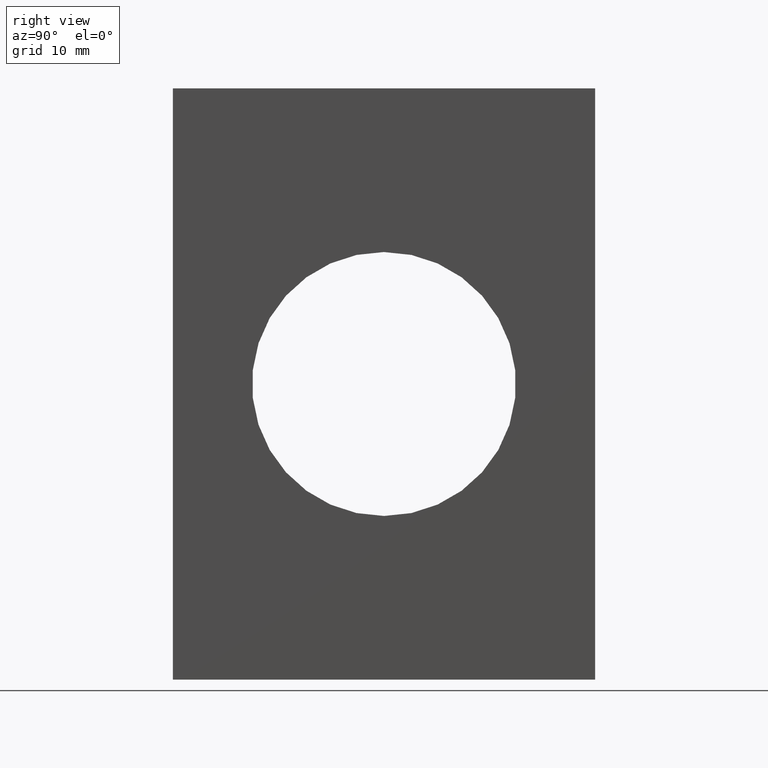
[diagram: clean part render]
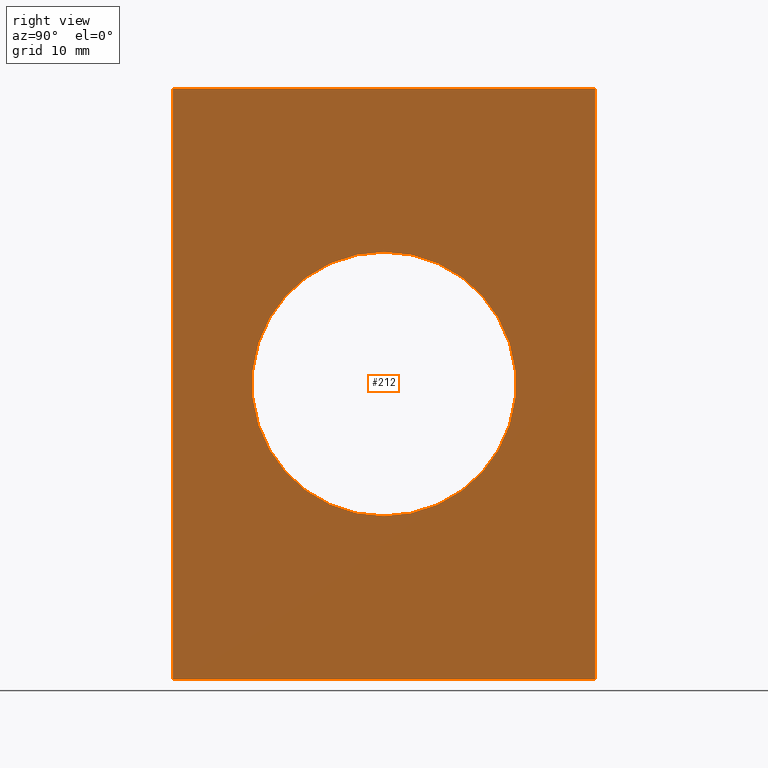
[diagram: same view with one face highlighted and labeled with its STEP entity id]
A machine part, right view. The second image highlights one B-rep face of the part: STEP entity #212.
In plain terms, the highlighted planar face has unit normal (1, 0, -0).
Its self-contained STEP definition (entity closure, byte-faithful):
#23=FACE_BOUND('',#81,.T.);
#40=CIRCLE('',#242,12.5);
#57=FACE_OUTER_BOUND('',#80,.T.);
#80=EDGE_LOOP('',(#179,#180,#181,#182));
#81=EDGE_LOOP('',(#183));
#87=LINE('',#318,#99);
#94=LINE('',#360,#106);
#95=LINE('',#363,#107);
#96=LINE('',#364,#108);
#99=VECTOR('',#253,10.);
#106=VECTOR('',#302,10.);
#107=VECTOR('',#305,10.);
#108=VECTOR('',#306,10.);
#111=VERTEX_POINT('',#315);
#112=VERTEX_POINT('',#317);
#123=VERTEX_POINT('',#349);
#126=VERTEX_POINT('',#358);
#127=VERTEX_POINT('',#362);
#129=EDGE_CURVE('',#111,#112,#87,.T.);
#141=EDGE_CURVE('',#123,#123,#40,.T.);
#146=EDGE_CURVE('',#126,#112,#94,.T.);
#147=EDGE_CURVE('',#127,#126,#95,.T.);
#148=EDGE_CURVE('',#127,#111,#96,.T.);
#179=ORIENTED_EDGE('',*,*,#147,.T.);
#180=ORIENTED_EDGE('',*,*,#146,.T.);
#181=ORIENTED_EDGE('',*,*,#129,.F.);
#182=ORIENTED_EDGE('',*,*,#148,.F.);
#183=ORIENTED_EDGE('',*,*,#141,.T.);
#197=PLANE('',#245);
#212=ADVANCED_FACE('',(#57,#23),#197,.T.);
#242=AXIS2_PLACEMENT_3D('',#350,#292,#293);
#245=AXIS2_PLACEMENT_3D('',#361,#303,#304);
#253=DIRECTION('',(-5.94762334620619E-17,0.,-1.));
#292=DIRECTION('center_axis',(-1.,0.,5.94762334620619E-17));
#293=DIRECTION('ref_axis',(0.,0.,1.));
#302=DIRECTION('',(0.,1.,0.));
#303=DIRECTION('center_axis',(1.,0.,-5.94762334620619E-17));
#304=DIRECTION('ref_axis',(-8.88178419700125E-17,0.,-1.));
#305=DIRECTION('',(-5.94762334620619E-17,0.,-1.));
#306=DIRECTION('',(0.,1.,0.));
#315=CARTESIAN_POINT('',(4.,40.,28.));
#317=CARTESIAN_POINT('',(4.,40.,-28.));
#318=CARTESIAN_POINT('',(4.,40.,28.));
#349=CARTESIAN_POINT('',(4.,20.,-12.5));
#350=CARTESIAN_POINT('Origin',(4.,20.,-1.33226762955019E-14));
#358=CARTESIAN_POINT('',(4.,0.,-28.));
#360=CARTESIAN_POINT('',(4.,0.,-28.));
#361=CARTESIAN_POINT('Origin',(4.,0.,28.));
#362=CARTESIAN_POINT('',(4.,0.,28.));
#363=CARTESIAN_POINT('',(4.,0.,28.));
#364=CARTESIAN_POINT('',(4.,0.,28.));